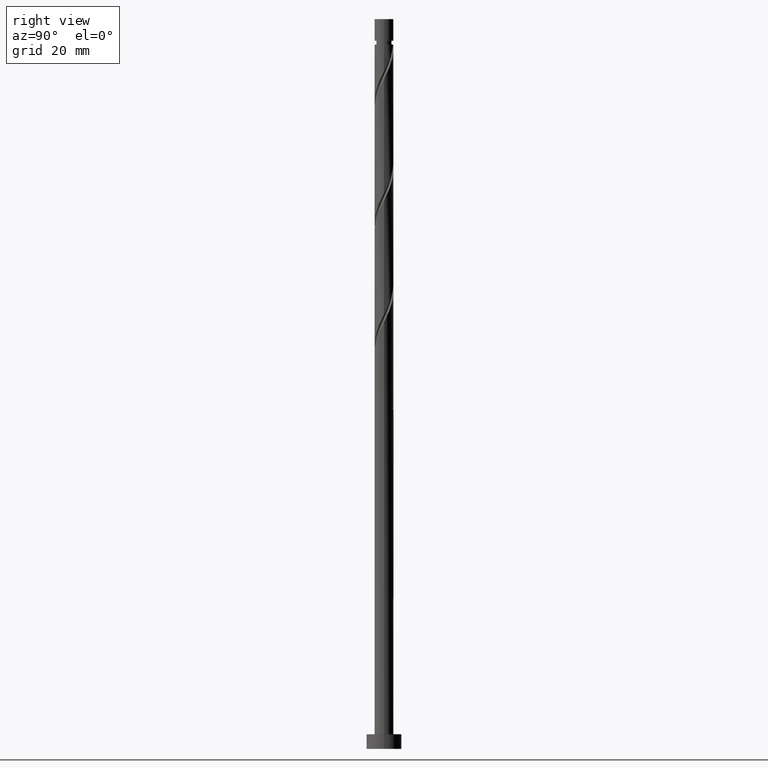
[diagram: clean part render]
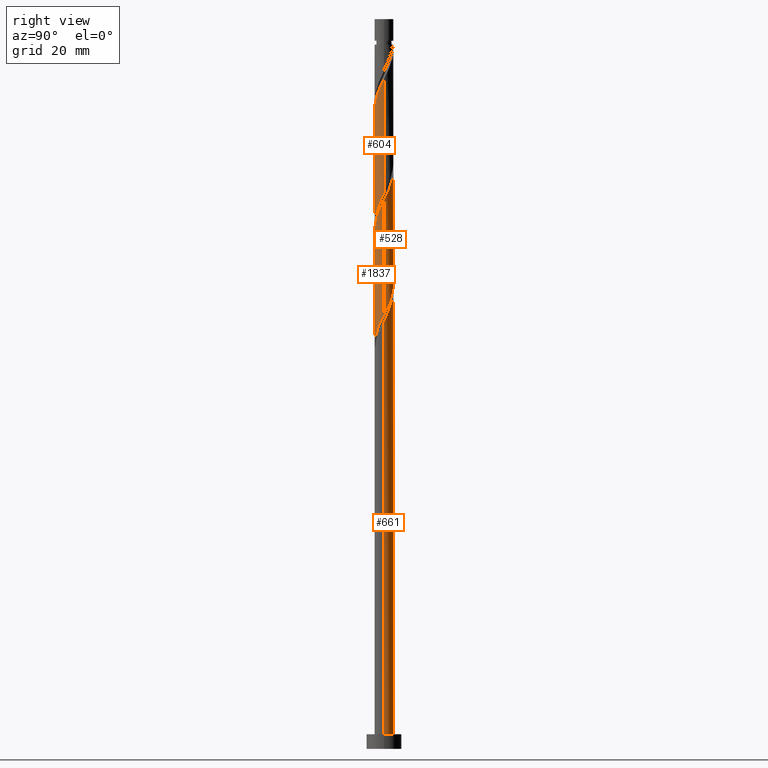
[diagram: same view with one multi-face feature highlighted, each face labeled with its STEP entity id]
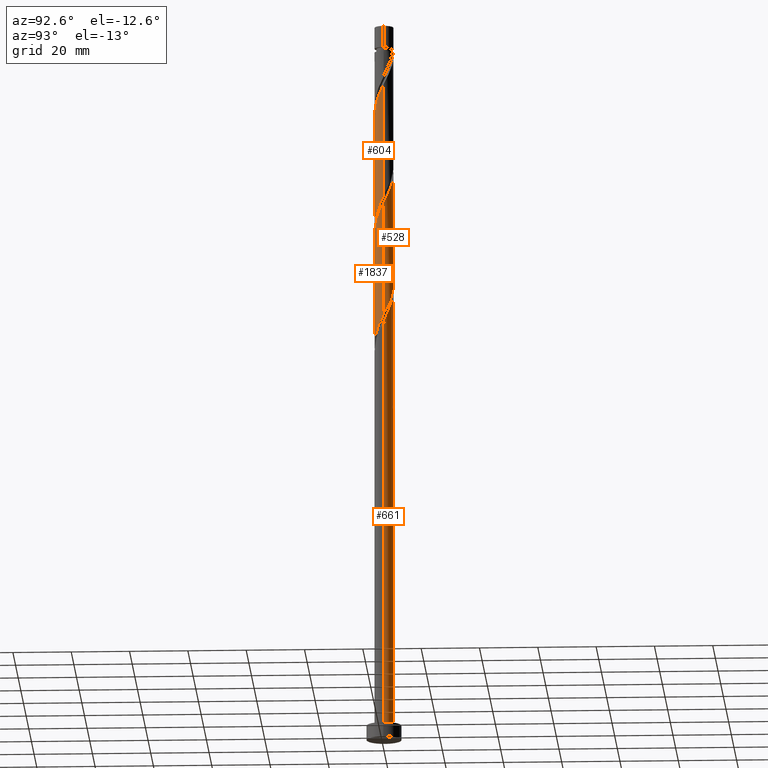
[diagram: same view with one multi-face feature highlighted, each face labeled with its STEP entity id]
A machine part, right view. The highlighted faces form ONE feature: a constant-radius fillet chain: 4 tangent blend faces with common blend radius 3.25 mm. The faces share edges in the B-rep.
A second angle (auxiliary view) of the same feature is appended — it is thin or edge-on in the first view.
Their STEP definitions:
[1] entity #604 (Cylinder):
#2 = CARTESIAN_POINT ( 'NONE',  ( -3.249999999999998668, -0.2640834252454046238, 170.2207945866532839 ) ) ;
#8 = CARTESIAN_POINT ( 'NONE',  ( -3.250000000000004885, -3.813764325988071043E-15, 208.6919167641879369 ) ) ;
#70 = CARTESIAN_POINT ( 'NONE',  ( 2.358742199564652697, -2.270365900294404771, 224.4429155631566459 ) ) ;
#78 = CARTESIAN_POINT ( 'NONE',  ( 3.250000000000004885, -1.166563205596351020E-15, 229.5252500975211660 ) ) ;
#94 = ORIENTED_EDGE ( 'NONE', *, *, #689, .T. ) ;
#120 = CARTESIAN_POINT ( 'NONE',  ( 3.250000000000004441, -1.166563205596351020E-15, 229.5252500975211660 ) ) ;
#198 = ORIENTED_EDGE ( 'NONE', *, *, #1499, .F. ) ;
#205 = CARTESIAN_POINT ( 'NONE',  ( 3.250000000000000444, 4.068015281053975210E-15, 190.5144271826383147 ) ) ;
#216 = CARTESIAN_POINT ( 'NONE',  ( 2.052804757022352433, -2.519621525060149914, 223.6416335118745167 ) ) ;
#259 = CYLINDRICAL_SURFACE ( 'NONE', #476, 3.250000000000000444 ) ;
#282 = CARTESIAN_POINT ( 'NONE',  ( -2.358742199564649145, -2.270365900294399886, 174.7634283836694920 ) ) ;
#300 = CARTESIAN_POINT ( 'NONE',  ( -3.250000000000000444, -5.458917564649635721E-15, 169.6810938493049719 ) ) ;
#306 = EDGE_LOOP ( 'NONE', ( #795, #916, #94, #198 ) ) ;
#311 = CARTESIAN_POINT ( 'NONE',  ( -2.538127330985535224, -2.067881944631018598, 213.2249668452079447 ) ) ;
#331 = LINE ( 'NONE', #903, #1171 ) ;
#345 = CARTESIAN_POINT ( 'NONE',  ( 1.286407482375274247, -3.010545112519590116, 182.7762488964900456 ) ) ;
#363 = CARTESIAN_POINT ( 'NONE',  ( 3.250000000000001332, -0.1292626735944874539, 190.2502562670053976 ) ) ;
#444 = CARTESIAN_POINT ( 'NONE',  ( 3.239733877669281448, -0.2581170313674841510, 189.9877873580284131 ) ) ;
#451 = EDGE_CURVE ( 'NONE', #658, #1624, #331, .T. ) ;
#453 = CARTESIAN_POINT ( 'NONE',  ( -3.239733877669285889, -0.2581170313674810979, 209.2185565887976679 ) ) ;
#476 = AXIS2_PLACEMENT_3D ( 'NONE', #1829, #1414, #1377 ) ;
#488 = CARTESIAN_POINT ( 'NONE',  ( 1.627952452366740133, -2.812875897161678296, 183.5775309477720043 ) ) ;
#508 = CARTESIAN_POINT ( 'NONE',  ( 1.746867314480051947, -2.768877149825894612, 222.8403514605925011 ) ) ;
#572 = CARTESIAN_POINT ( 'NONE',  ( -3.250000000000000444, -5.458917564649635721E-15, 169.6810938493049719 ) ) ;
#577 = CARTESIAN_POINT ( 'NONE',  ( -3.250000000000003997, -0.1292626735945026362, 208.9560876798208255 ) ) ;
#582 = CARTESIAN_POINT ( 'NONE',  ( -2.052804757022349325, -2.519621525060144585, 175.5647104349515359 ) ) ;
#587 = CARTESIAN_POINT ( 'NONE',  ( -2.959250504853449648, -1.400379425281350398, 211.6224027426438283 ) ) ;
#604 = ADVANCED_FACE ( 'NONE', ( #1819 ), #259, .T. ) ;
#651 = CARTESIAN_POINT ( 'NONE',  ( -1.286407482375277800, -3.010545112519593669, 216.4300950503361207 ) ) ;
#658 = VERTEX_POINT ( 'NONE', #120 ) ;
#665 = CARTESIAN_POINT ( 'NONE',  ( 1.033470850682205233, -3.106471323868436052, 221.2377873580283847 ) ) ;
#689 = EDGE_CURVE ( 'NONE', #1332, #1000, #713, .T. ) ;
#694 = CARTESIAN_POINT ( 'NONE',  ( -0.2600128175564059285, -3.263528676131567163, 179.5711206913617559 ) ) ;
#703 = CARTESIAN_POINT ( 'NONE',  ( -1.390169082581128368, -2.937674236847159559, 177.1672745375156239 ) ) ;
#713 = LINE ( 'NONE', #971, #1374 ) ;
#714 = CARTESIAN_POINT ( 'NONE',  ( -3.143654136451845105, -0.9141470098380720666, 171.5583001785413160 ) ) ;
#741 = CARTESIAN_POINT ( 'NONE',  ( -1.627952452366745240, -2.812875897161680516, 215.6288129990541336 ) ) ;
#770 = CARTESIAN_POINT ( 'NONE',  ( 1.390169082581128368, -2.937674236847165776, 222.0390694093105139 ) ) ;
#776 = CARTESIAN_POINT ( 'NONE',  ( 0.5285562154176340899, -3.230921604182013240, 181.1736847939259007 ) ) ;
#780 = CARTESIAN_POINT ( 'NONE',  ( -0.9074818488964577767, -3.120733358350805897, 217.2313771016181647 ) ) ;
#793 = CARTESIAN_POINT ( 'NONE',  ( 3.250000000000000444, 4.068015281053975210E-15, 190.5144271826382862 ) ) ;
#795 = ORIENTED_EDGE ( 'NONE', *, *, #451, .F. ) ;
#865 = CARTESIAN_POINT ( 'NONE',  ( -3.083821650335326847, -1.025935684593890285, 210.8211206913617843 ) ) ;
#873 = CARTESIAN_POINT ( 'NONE',  ( -2.253812376671872730, -2.341544313217394535, 214.0262488964899887 ) ) ;
#903 = CARTESIAN_POINT ( 'NONE',  ( 3.250000000000000444, 3.980102097228898231E-16, 250.0000000000000000 ) ) ;
#906 = CARTESIAN_POINT ( 'NONE',  ( 3.083821650335320630, -1.025935684593891173, 188.3852232554643251 ) ) ;
#916 = ORIENTED_EDGE ( 'NONE', *, *, #1047, .F. ) ;
#919 = CARTESIAN_POINT ( 'NONE',  ( 2.988594849070724813, -1.277028123460074438, 226.8467617170027779 ) ) ;
#971 = CARTESIAN_POINT ( 'NONE',  ( -3.250000000000000444, 0.000000000000000000, 250.0000000000000000 ) ) ;
#981 = CARTESIAN_POINT ( 'NONE',  ( -1.033470850682206121, -3.106471323868430723, 177.9685565887976963 ) ) ;
#1000 = VERTEX_POINT ( 'NONE', #300 ) ;
#1015 = CARTESIAN_POINT ( 'NONE',  ( 2.253812376671868289, -2.341544313217390094, 185.1800950503361776 ) ) ;
#1029 =( BOUNDED_CURVE ( )  B_SPLINE_CURVE ( 2, ( #8, #577, #453, #1556, #865, #587, #1565, #311, #873, #1430, #741, #651, #780, #1213, #1475, #1790, #1051, #665, #770, #508, #216, #70, #1608, #1620, #919, #1627, #1338, #1779, #78 ),
 .UNSPECIFIED., .F., .T. ) 
 B_SPLINE_CURVE_WITH_KNOTS ( ( 3, 2, 2, 2, 2, 2, 2, 2, 2, 2, 2, 2, 2, 2, 3 ),
 ( 0.5545271625973834384, 0.5576923076923077094, 0.5673076923076922906, 0.5769230769230768718, 0.5865384615384615641, 0.5961538461538461453, 0.6057692307692308376, 0.6153846153846154188, 0.6250000000000000000, 0.6346153846153845812, 0.6442307692307691624, 0.6538461538461538547, 0.6634615384615384359, 0.6730769230769231282, 0.6795271625973831053 ),
 .UNSPECIFIED. ) 
 CURVE ( )  GEOMETRIC_REPRESENTATION_ITEM ( )  RATIONAL_B_SPLINE_CURVE ( ( 0.9061636035682909540, 0.9069090390690797143, 0.9090909090909361501, 0.9024626128164395800, 0.9090909090909361501, 0.9024626128164395800, 0.9090909090909361501, 0.9024626128164395800, 0.9090909090909361501, 0.9024626128164395800, 0.9090909090909361501, 0.9024626128164395800, 0.9090909090909361501, 0.9024626128164395800, 0.9090909090909361501, 0.9024626128164395800, 0.9090909090909361501, 0.9024626128164395800, 0.9090909090909361501, 0.9024626128164395800, 0.9090909090909361501, 0.9024626128164395800, 0.9090909090909361501, 0.9024626128164395800, 0.9090909090909361501, 0.9024626128164395800, 0.9090909090909361501, 0.9046444828382962378, 0.9061636035682908430 ) ) 
 REPRESENTATION_ITEM ( '' )  );
#1047 = EDGE_CURVE ( 'NONE', #1332, #658, #1029, .T. ) ;
#1051 = CARTESIAN_POINT ( 'NONE',  ( 0.6467418341193050813, -3.185000000000004050, 220.4365053067463691 ) ) ;
#1129 = DIRECTION ( 'NONE',  ( -0.000000000000000000, -0.000000000000000000, -1.000000000000000000 ) ) ;
#1144 = CARTESIAN_POINT ( 'NONE',  ( 2.959250504853443875, -1.400379425281348400, 187.5839412041822527 ) ) ;
#1171 = VECTOR ( 'NONE', #1309, 1000.000000000000000 ) ;
#1213 = CARTESIAN_POINT ( 'NONE',  ( -0.5285562154176376426, -3.230921604182017681, 218.0326591529002371 ) ) ;
#1268 = CARTESIAN_POINT ( 'NONE',  ( -3.207364547986603753, -0.5247024455047688551, 170.7570181272592436 ) ) ;
#1277 = CARTESIAN_POINT ( 'NONE',  ( -2.988594849070721704, -1.277028123460070885, 172.3595822298233031 ) ) ;
#1281 = CARTESIAN_POINT ( 'NONE',  ( 3.208392795817198717, -0.6514919439064307261, 189.1865053067463975 ) ) ;
#1309 = DIRECTION ( 'NONE',  ( -0.000000000000000000, -0.000000000000000000, -1.000000000000000000 ) ) ;
#1323 = CARTESIAN_POINT ( 'NONE',  ( 0.1342716989306140807, -3.247225140156789536, 180.3724027426438283 ) ) ;
#1332 = VERTEX_POINT ( 'NONE', #1436 ) ;
#1338 = CARTESIAN_POINT ( 'NONE',  ( 3.207364547986609082, -0.5247024455047716307, 228.4493258195668943 ) ) ;
#1374 = VECTOR ( 'NONE', #1129, 1000.000000000000000 ) ;
#1377 = DIRECTION ( 'NONE',  ( -1.000000000000000000, 0.000000000000000000, 0.000000000000000000 ) ) ;
#1403 = CARTESIAN_POINT ( 'NONE',  ( -2.833535561689598303, -1.639909237082070037, 173.1608642811054040 ) ) ;
#1414 = DIRECTION ( 'NONE',  ( -0.000000000000000000, -0.000000000000000000, -1.000000000000000000 ) ) ;
#1416 = CARTESIAN_POINT ( 'NONE',  ( -2.596138880627123946, -1.955137568688234628, 173.9621463323874195 ) ) ;
#1430 = CARTESIAN_POINT ( 'NONE',  ( -1.969497422358212013, -2.615206681803768252, 214.8275309477720327 ) ) ;
#1436 = CARTESIAN_POINT ( 'NONE',  ( -3.250000000000004885, -3.813764325988071043E-15, 208.6919167641879085 ) ) ;
#1457 = CARTESIAN_POINT ( 'NONE',  ( 2.538127330985529007, -2.067881944631017266, 185.9813771016181931 ) ) ;
#1464 = CARTESIAN_POINT ( 'NONE',  ( 0.9074818488964547791, -3.120733358350800568, 181.9749668452079732 ) ) ;
#1475 = CARTESIAN_POINT ( 'NONE',  ( -0.1342716989306171060, -3.247225140156795309, 218.8339412041823095 ) ) ;
#1499 = EDGE_CURVE ( 'NONE', #1624, #1000, #1787, .T. ) ;
#1554 = CARTESIAN_POINT ( 'NONE',  ( 2.748688917919486663, -1.734130684956182833, 186.7826591529002656 ) ) ;
#1556 = CARTESIAN_POINT ( 'NONE',  ( -3.208392795817203602, -0.6514919439064305040, 210.0198386400797119 ) ) ;
#1564 = CARTESIAN_POINT ( 'NONE',  ( 1.969497422358206684, -2.615206681803766031, 184.3788129990541620 ) ) ;
#1565 = CARTESIAN_POINT ( 'NONE',  ( -2.748688917919491992, -1.734130684956183721, 212.4236847939259007 ) ) ;
#1608 = CARTESIAN_POINT ( 'NONE',  ( 2.596138880627126166, -1.955137568688240179, 225.2441976144387183 ) ) ;
#1620 = CARTESIAN_POINT ( 'NONE',  ( 2.833535561689600968, -1.639909237082075588, 226.0454796657207908 ) ) ;
#1624 = VERTEX_POINT ( 'NONE', #205 ) ;
#1627 = CARTESIAN_POINT ( 'NONE',  ( 3.143654136451849102, -0.9141470098380762854, 227.6480437682848503 ) ) ;
#1713 = CARTESIAN_POINT ( 'NONE',  ( -0.6467418341193054143, -3.184999999999998721, 178.7698386400797688 ) ) ;
#1779 = CARTESIAN_POINT ( 'NONE',  ( 3.250000000000003553, -0.2640834252454062336, 228.9855493601728540 ) ) ;
#1787 =( BOUNDED_CURVE ( )  B_SPLINE_CURVE ( 2, ( #793, #363, #444, #1281, #906, #1144, #1554, #1457, #1015, #1564, #488, #345, #1464, #776, #1323, #694, #1713, #981, #703, #1831, #582, #282, #1416, #1403, #1277, #714, #1268, #2, #572 ),
 .UNSPECIFIED., .F., .T. ) 
 B_SPLINE_CURVE_WITH_KNOTS ( ( 3, 2, 2, 2, 2, 2, 2, 2, 2, 2, 2, 2, 2, 2, 3 ),
 ( 0.5545271625973829943, 0.5576923076923077094, 0.5673076923076922906, 0.5769230769230768718, 0.5865384615384615641, 0.5961538461538461453, 0.6057692307692307265, 0.6153846153846154188, 0.6250000000000000000, 0.6346153846153845812, 0.6442307692307692735, 0.6538461538461538547, 0.6634615384615384359, 0.6730769230769231282, 0.6795271625973831053 ),
 .UNSPECIFIED. ) 
 CURVE ( )  GEOMETRIC_REPRESENTATION_ITEM ( )  RATIONAL_B_SPLINE_CURVE ( ( 0.9061636035682838486, 0.9069090390690723869, 0.9090909090909291557, 0.9024626128164325856, 0.9090909090909291557, 0.9024626128164325856, 0.9090909090909291557, 0.9024626128164325856, 0.9090909090909291557, 0.9024626128164325856, 0.9090909090909291557, 0.9024626128164325856, 0.9090909090909291557, 0.9024626128164325856, 0.9090909090909291557, 0.9024626128164325856, 0.9090909090909291557, 0.9024626128164325856, 0.9090909090909291557, 0.9024626128164325856, 0.9090909090909291557, 0.9024626128164325856, 0.9090909090909291557, 0.9024626128164325856, 0.9090909090909291557, 0.9024626128164325856, 0.9090909090909291557, 0.9046444828382893544, 0.9061636035682838486 ) ) 
 REPRESENTATION_ITEM ( '' )  );
#1790 = CARTESIAN_POINT ( 'NONE',  ( 0.2600128175564035971, -3.263528676131572936, 219.6352232554642967 ) ) ;
#1819 = FACE_OUTER_BOUND ( 'NONE', #306, .T. ) ;
#1829 = CARTESIAN_POINT ( 'NONE',  ( 0.000000000000000000, 0.000000000000000000, 250.0000000000000000 ) ) ;
#1831 = CARTESIAN_POINT ( 'NONE',  ( -1.746867314480051281, -2.768877149825889727, 176.3659924862335799 ) ) ;
[2] entity #528 (Cylinder):
#52 = CARTESIAN_POINT ( 'NONE',  ( 0.1342716989306189102, 3.247225140156795309, 198.0006078708489667 ) ) ;
#63 = CARTESIAN_POINT ( 'NONE',  ( -0.2600128175564032640, 3.263528676131572936, 198.8018899221310392 ) ) ;
#92 = DIRECTION ( 'NONE',  ( -1.000000000000000000, 0.000000000000000000, 0.000000000000000000 ) ) ;
#109 = CARTESIAN_POINT ( 'NONE',  ( -3.250000000000005773, 0.2640834252453927444, 208.1522160268396249 ) ) ;
#160 = EDGE_LOOP ( 'NONE', ( #992, #1587, #433, #1312 ) ) ;
#177 = CARTESIAN_POINT ( 'NONE',  ( 1.286407482375278022, 3.010545112519593669, 195.5967617170027779 ) ) ;
#229 = CARTESIAN_POINT ( 'NONE',  ( 0.000000000000000000, 0.000000000000000000, 250.0000000000000000 ) ) ;
#241 = CARTESIAN_POINT ( 'NONE',  ( 3.207364547986603753, 0.5247024455047691882, 149.9236847939258155 ) ) ;
#250 = CARTESIAN_POINT ( 'NONE',  ( 0.2600128175564052069, 3.263528676131567607, 158.7377873580284415 ) ) ;
#286 =( BOUNDED_CURVE ( )  B_SPLINE_CURVE ( 2, ( #686, #561, #1816, #1798, #536, #553, #1111, #410, #1252, #1527, #833, #1388, #1224, #531, #352, #250, #1063, #819, #679, #379, #945, #1480, #1762, #1783, #784, #1198, #241, #1237, #1807 ),
 .UNSPECIFIED., .F., .T. ) 
 B_SPLINE_CURVE_WITH_KNOTS ( ( 3, 2, 2, 2, 2, 2, 2, 2, 2, 2, 2, 2, 2, 2, 3 ),
 ( 0.6795271625973831053, 0.6826923076923077094, 0.6923076923076922906, 0.7019230769230768718, 0.7115384615384615641, 0.7211538461538461453, 0.7307692307692307265, 0.7403846153846154188, 0.7500000000000000000, 0.7596153846153845812, 0.7692307692307692735, 0.7788461538461538547, 0.7884615384615384359, 0.7980769230769231282, 0.8045271625973832164 ),
 .UNSPECIFIED. ) 
 CURVE ( )  GEOMETRIC_REPRESENTATION_ITEM ( )  RATIONAL_B_SPLINE_CURVE ( ( 0.9061636035682838486, 0.9069090390690723869, 0.9090909090909291557, 0.9024626128164325856, 0.9090909090909291557, 0.9024626128164325856, 0.9090909090909291557, 0.9024626128164325856, 0.9090909090909291557, 0.9024626128164325856, 0.9090909090909291557, 0.9024626128164325856, 0.9090909090909291557, 0.9024626128164325856, 0.9090909090909291557, 0.9024626128164325856, 0.9090909090909291557, 0.9024626128164325856, 0.9090909090909291557, 0.9024626128164325856, 0.9090909090909291557, 0.9024626128164325856, 0.9090909090909291557, 0.9024626128164325856, 0.9090909090909291557, 0.9024626128164325856, 0.9090909090909291557, 0.9046444828382892434, 0.9061636035682840706 ) ) 
 REPRESENTATION_ITEM ( '' )  );
#300 = CARTESIAN_POINT ( 'NONE',  ( -3.250000000000000444, -5.458917564649635721E-15, 169.6810938493049719 ) ) ;
#321 = CARTESIAN_POINT ( 'NONE',  ( 1.969497422358212901, 2.615206681803766919, 193.9941976144387183 ) ) ;
#351 = AXIS2_PLACEMENT_3D ( 'NONE', #229, #1353, #92 ) ;
#352 = CARTESIAN_POINT ( 'NONE',  ( -0.1342716989306150244, 3.247225140156789536, 159.5390694093104855 ) ) ;
#379 = CARTESIAN_POINT ( 'NONE',  ( 1.746867314480051947, 2.768877149825889727, 155.5326591529002087 ) ) ;
#383 = CARTESIAN_POINT ( 'NONE',  ( 2.959250504853450092, 1.400379425281349066, 190.7890694093105139 ) ) ;
#393 = CARTESIAN_POINT ( 'NONE',  ( -2.596138880627126611, 1.955137568688239735, 204.4108642811053471 ) ) ;
#410 = CARTESIAN_POINT ( 'NONE',  ( -2.538127330985530339, 2.067881944631015489, 165.1480437682849072 ) ) ;
#422 = VERTEX_POINT ( 'NONE', #525 ) ;
#426 = CARTESIAN_POINT ( 'NONE',  ( -3.143654136451849990, 0.9141470098380741760, 206.8147104349515075 ) ) ;
#433 = ORIENTED_EDGE ( 'NONE', *, *, #472, .F. ) ;
#459 = EDGE_CURVE ( 'NONE', #1445, #1332, #673, .T. ) ;
#465 = CARTESIAN_POINT ( 'NONE',  ( 3.250000000000005773, 0.1292626735944929217, 188.1227543464874827 ) ) ;
#472 = EDGE_CURVE ( 'NONE', #1000, #422, #286, .T. ) ;
#475 = CARTESIAN_POINT ( 'NONE',  ( 2.748688917919491548, 1.734130684956184165, 191.5903514605925579 ) ) ;
#525 = CARTESIAN_POINT ( 'NONE',  ( 3.250000000000000444, 4.068015281053975210E-15, 148.8477605159716575 ) ) ;
#528 = ADVANCED_FACE ( 'NONE', ( #1488 ), #1643, .T. ) ;
#531 = CARTESIAN_POINT ( 'NONE',  ( -0.5285562154176352001, 3.230921604182013240, 160.3403514605925011 ) ) ;
#536 = CARTESIAN_POINT ( 'NONE',  ( -3.083821650335321074, 1.025935684593889841, 167.5518899221310392 ) ) ;
#553 = CARTESIAN_POINT ( 'NONE',  ( -2.959250504853443875, 1.400379425281348844, 166.7506078708489952 ) ) ;
#561 = CARTESIAN_POINT ( 'NONE',  ( -3.250000000000001332, 0.1292626735944902294, 169.4169229336720264 ) ) ;
#586 = VECTOR ( 'NONE', #990, 1000.000000000000000 ) ;
#626 = CARTESIAN_POINT ( 'NONE',  ( -0.6467418341193047482, 3.185000000000004050, 199.6031719734130547 ) ) ;
#673 =( BOUNDED_CURVE ( )  B_SPLINE_CURVE ( 2, ( #1083, #465, #772, #1574, #1635, #383, #475, #755, #813, #321, #884, #177, #1300, #1033, #52, #63, #626, #1185, #1626, #939, #828, #1244, #393, #1371, #1664, #426, #1823, #109, #1094 ),
 .UNSPECIFIED., .F., .T. ) 
 B_SPLINE_CURVE_WITH_KNOTS ( ( 3, 2, 2, 2, 2, 2, 2, 2, 2, 2, 2, 2, 2, 2, 3 ),
 ( 0.4295271625973832164, 0.4326923076923077094, 0.4423076923076922906, 0.4519230769230768718, 0.4615384615384615641, 0.4711538461538461453, 0.4807692307692307265, 0.4903846153846154188, 0.5000000000000000000, 0.5096153846153845812, 0.5192307692307691624, 0.5288461538461538547, 0.5384615384615384359, 0.5480769230769231282, 0.5545271625973834384 ),
 .UNSPECIFIED. ) 
 CURVE ( )  GEOMETRIC_REPRESENTATION_ITEM ( )  RATIONAL_B_SPLINE_CURVE ( ( 0.9061636035682908430, 0.9069090390690794923, 0.9090909090909361501, 0.9024626128164395800, 0.9090909090909361501, 0.9024626128164395800, 0.9090909090909361501, 0.9024626128164395800, 0.9090909090909361501, 0.9024626128164395800, 0.9090909090909361501, 0.9024626128164395800, 0.9090909090909361501, 0.9024626128164395800, 0.9090909090909361501, 0.9024626128164395800, 0.9090909090909361501, 0.9024626128164395800, 0.9090909090909361501, 0.9024626128164395800, 0.9090909090909361501, 0.9024626128164395800, 0.9090909090909361501, 0.9024626128164395800, 0.9090909090909361501, 0.9024626128164395800, 0.9090909090909361501, 0.9046444828382961267, 0.9061636035682909540 ) ) 
 REPRESENTATION_ITEM ( '' )  );
#679 = CARTESIAN_POINT ( 'NONE',  ( 1.390169082581129922, 2.937674236847158671, 156.3339412041822811 ) ) ;
#686 = CARTESIAN_POINT ( 'NONE',  ( -3.250000000000000444, -5.458917564649635721E-15, 169.6810938493049719 ) ) ;
#689 = EDGE_CURVE ( 'NONE', #1332, #1000, #713, .T. ) ;
#713 = LINE ( 'NONE', #971, #1374 ) ;
#726 = CARTESIAN_POINT ( 'NONE',  ( 3.250000000000000444, 3.980102097228898231E-16, 250.0000000000000000 ) ) ;
#755 = CARTESIAN_POINT ( 'NONE',  ( 2.538127330985536556, 2.067881944631017266, 192.3916335118746304 ) ) ;
#772 = CARTESIAN_POINT ( 'NONE',  ( 3.239733877669286333, 0.2581170313674799321, 188.3852232554642967 ) ) ;
#784 = CARTESIAN_POINT ( 'NONE',  ( 2.988594849070721704, 1.277028123460070663, 151.5262488964900456 ) ) ;
#803 = EDGE_CURVE ( 'NONE', #1445, #422, #1681, .T. ) ;
#813 = CARTESIAN_POINT ( 'NONE',  ( 2.253812376671873174, 2.341544313217394535, 193.1929155631566175 ) ) ;
#819 = CARTESIAN_POINT ( 'NONE',  ( 1.033470850682206565, 3.106471323868430723, 157.1352232554643535 ) ) ;
#828 = CARTESIAN_POINT ( 'NONE',  ( -2.052804757022352877, 2.519621525060149914, 202.8083001785412591 ) ) ;
#833 = CARTESIAN_POINT ( 'NONE',  ( -1.627952452366741021, 2.812875897161677852, 162.7441976144386899 ) ) ;
#884 = CARTESIAN_POINT ( 'NONE',  ( 1.627952452366745906, 2.812875897161680516, 194.7954796657207623 ) ) ;
#939 = CARTESIAN_POINT ( 'NONE',  ( -1.746867314480052613, 2.768877149825894612, 202.0070181272592151 ) ) ;
#945 = CARTESIAN_POINT ( 'NONE',  ( 2.052804757022351545, 2.519621525060142808, 154.7313771016182500 ) ) ;
#971 = CARTESIAN_POINT ( 'NONE',  ( -3.250000000000000444, 0.000000000000000000, 250.0000000000000000 ) ) ;
#990 = DIRECTION ( 'NONE',  ( -0.000000000000000000, -0.000000000000000000, -1.000000000000000000 ) ) ;
#992 = ORIENTED_EDGE ( 'NONE', *, *, #459, .F. ) ;
#1000 = VERTEX_POINT ( 'NONE', #300 ) ;
#1033 = CARTESIAN_POINT ( 'NONE',  ( 0.5285562154176379757, 3.230921604182017681, 197.1993258195668659 ) ) ;
#1063 = CARTESIAN_POINT ( 'NONE',  ( 0.6467418341193055253, 3.184999999999998721, 157.9365053067463691 ) ) ;
#1083 = CARTESIAN_POINT ( 'NONE',  ( 3.250000000000004885, 1.869492316660819541E-15, 187.8585834308544804 ) ) ;
#1094 = CARTESIAN_POINT ( 'NONE',  ( -3.250000000000004885, -3.813764325988071043E-15, 208.6919167641879369 ) ) ;
#1111 = CARTESIAN_POINT ( 'NONE',  ( -2.748688917919486663, 1.734130684956182167, 165.9493258195669512 ) ) ;
#1129 = DIRECTION ( 'NONE',  ( -0.000000000000000000, -0.000000000000000000, -1.000000000000000000 ) ) ;
#1185 = CARTESIAN_POINT ( 'NONE',  ( -1.033470850682205677, 3.106471323868436052, 200.4044540246950987 ) ) ;
#1198 = CARTESIAN_POINT ( 'NONE',  ( 3.143654136451845105, 0.9141470098380702902, 150.7249668452079447 ) ) ;
#1224 = CARTESIAN_POINT ( 'NONE',  ( -0.9074818488964551122, 3.120733358350800568, 161.1416335118746019 ) ) ;
#1237 = CARTESIAN_POINT ( 'NONE',  ( 3.249999999999999556, 0.2640834252453994613, 149.3874612533199695 ) ) ;
#1244 = CARTESIAN_POINT ( 'NONE',  ( -2.358742199564652697, 2.270365900294404771, 203.6095822298232747 ) ) ;
#1252 = CARTESIAN_POINT ( 'NONE',  ( -2.253812376671868289, 2.341544313217390094, 164.3467617170028348 ) ) ;
#1300 = CARTESIAN_POINT ( 'NONE',  ( 0.9074818488964597751, 3.120733358350805453, 196.3980437682848503 ) ) ;
#1312 = ORIENTED_EDGE ( 'NONE', *, *, #689, .F. ) ;
#1332 = VERTEX_POINT ( 'NONE', #1436 ) ;
#1353 = DIRECTION ( 'NONE',  ( -0.000000000000000000, -0.000000000000000000, -1.000000000000000000 ) ) ;
#1371 = CARTESIAN_POINT ( 'NONE',  ( -2.833535561689601412, 1.639909237082074478, 205.2121463323873627 ) ) ;
#1374 = VECTOR ( 'NONE', #1129, 1000.000000000000000 ) ;
#1388 = CARTESIAN_POINT ( 'NONE',  ( -1.286407482375274913, 3.010545112519589672, 161.9429155631566459 ) ) ;
#1436 = CARTESIAN_POINT ( 'NONE',  ( -3.250000000000004885, -3.813764325988071043E-15, 208.6919167641879085 ) ) ;
#1445 = VERTEX_POINT ( 'NONE', #1825 ) ;
#1480 = CARTESIAN_POINT ( 'NONE',  ( 2.358742199564649145, 2.270365900294399886, 153.9300950503362060 ) ) ;
#1488 = FACE_OUTER_BOUND ( 'NONE', #160, .T. ) ;
#1527 = CARTESIAN_POINT ( 'NONE',  ( -1.969497422358206684, 2.615206681803766031, 163.5454796657207908 ) ) ;
#1574 = CARTESIAN_POINT ( 'NONE',  ( 3.208392795817203602, 0.6514919439064300599, 189.1865053067463975 ) ) ;
#1587 = ORIENTED_EDGE ( 'NONE', *, *, #803, .T. ) ;
#1626 = CARTESIAN_POINT ( 'NONE',  ( -1.390169082581129034, 2.937674236847164888, 201.2057360759771711 ) ) ;
#1635 = CARTESIAN_POINT ( 'NONE',  ( 3.083821650335326847, 1.025935684593888286, 189.9877873580284700 ) ) ;
#1643 = CYLINDRICAL_SURFACE ( 'NONE', #351, 3.250000000000000444 ) ;
#1664 = CARTESIAN_POINT ( 'NONE',  ( -2.988594849070724813, 1.277028123460074438, 206.0134283836694351 ) ) ;
#1681 = LINE ( 'NONE', #726, #586 ) ;
#1762 = CARTESIAN_POINT ( 'NONE',  ( 2.596138880627123946, 1.955137568688233740, 153.1288129990540767 ) ) ;
#1783 = CARTESIAN_POINT ( 'NONE',  ( 2.833535561689598747, 1.639909237082068261, 152.3275309477720612 ) ) ;
#1798 = CARTESIAN_POINT ( 'NONE',  ( -3.208392795817198717, 0.6514919439064305040, 168.3531719734130832 ) ) ;
#1807 = CARTESIAN_POINT ( 'NONE',  ( 3.250000000000000444, 4.068015281053975210E-15, 148.8477605159716575 ) ) ;
#1816 = CARTESIAN_POINT ( 'NONE',  ( -3.239733877669281448, 0.2581170313674822081, 169.1544540246950987 ) ) ;
#1823 = CARTESIAN_POINT ( 'NONE',  ( -3.207364547986609082, 0.5247024455047712976, 207.6159924862335515 ) ) ;
#1825 = CARTESIAN_POINT ( 'NONE',  ( 3.250000000000004441, 1.869492316660819541E-15, 187.8585834308544804 ) ) ;
[3] entity #1837 (Cylinder):
#42 = CARTESIAN_POINT ( 'NONE',  ( 1.969497422358206684, -2.615206681803766031, 142.7121463323874480 ) ) ;
#88 = CYLINDRICAL_SURFACE ( 'NONE', #648, 3.250000000000000444 ) ;
#111 = CARTESIAN_POINT ( 'NONE',  ( 3.250000000000004885, 1.869492316660819541E-15, 187.8585834308544804 ) ) ;
#117 = CARTESIAN_POINT ( 'NONE',  ( 2.358742199564652697, -2.270365900294404771, 182.7762488964899603 ) ) ;
#159 = CARTESIAN_POINT ( 'NONE',  ( 1.286407482375274247, -3.010545112519590116, 141.1095822298233315 ) ) ;
#167 = CARTESIAN_POINT ( 'NONE',  ( 0.5285562154176340899, -3.230921604182013240, 139.5070181272592436 ) ) ;
#209 = VERTEX_POINT ( 'NONE', #1390 ) ;
#232 = EDGE_LOOP ( 'NONE', ( #1560, #1725, #1012, #1380 ) ) ;
#246 = CARTESIAN_POINT ( 'NONE',  ( 0.6467418341193050813, -3.185000000000004050, 178.7698386400797119 ) ) ;
#263 = CARTESIAN_POINT ( 'NONE',  ( -0.5285562154176376426, -3.230921604182017681, 176.3659924862336084 ) ) ;
#269 = CARTESIAN_POINT ( 'NONE',  ( -1.286407482375277800, -3.010545112519593669, 174.7634283836694635 ) ) ;
#292 = VECTOR ( 'NONE', #1836, 1000.000000000000000 ) ;
#315 = CARTESIAN_POINT ( 'NONE',  ( 3.250000000000000444, 4.068015281053975210E-15, 148.8477605159716575 ) ) ;
#324 = CARTESIAN_POINT ( 'NONE',  ( -3.143654136451845105, -0.9141470098380720666, 129.8916335118746019 ) ) ;
#341 = CARTESIAN_POINT ( 'NONE',  ( -0.6467418341193054143, -3.184999999999998721, 137.1031719734130832 ) ) ;
#360 = VERTEX_POINT ( 'NONE', #1009 ) ;
#376 = DIRECTION ( 'NONE',  ( -1.000000000000000000, 0.000000000000000000, 0.000000000000000000 ) ) ;
#386 = CARTESIAN_POINT ( 'NONE',  ( 3.143654136451849102, -0.9141470098380762854, 185.9813771016181647 ) ) ;
#395 = CARTESIAN_POINT ( 'NONE',  ( 3.250000000000004441, -0.2640834252454016817, 187.3188826935062252 ) ) ;
#422 = VERTEX_POINT ( 'NONE', #525 ) ;
#457 = CARTESIAN_POINT ( 'NONE',  ( 2.748688917919486663, -1.734130684956182833, 145.1159924862335799 ) ) ;
#466 = CARTESIAN_POINT ( 'NONE',  ( -2.833535561689598303, -1.639909237082070037, 131.4941976144387183 ) ) ;
#477 = CARTESIAN_POINT ( 'NONE',  ( -1.390169082581128368, -2.937674236847159559, 135.5006078708489667 ) ) ;
#487 = CARTESIAN_POINT ( 'NONE',  ( 2.959250504853443875, -1.400379425281348400, 145.9172745375156808 ) ) ;
#525 = CARTESIAN_POINT ( 'NONE',  ( 3.250000000000000444, 4.068015281053975210E-15, 148.8477605159716575 ) ) ;
#537 = CARTESIAN_POINT ( 'NONE',  ( -3.083821650335326847, -1.025935684593890285, 169.1544540246951556 ) ) ;
#569 = CARTESIAN_POINT ( 'NONE',  ( 1.033470850682205233, -3.106471323868436052, 179.5711206913617559 ) ) ;
#580 = CARTESIAN_POINT ( 'NONE',  ( 2.253812376671868289, -2.341544313217390094, 143.5134283836694635 ) ) ;
#586 = VECTOR ( 'NONE', #990, 1000.000000000000000 ) ;
#595 =( BOUNDED_CURVE ( )  B_SPLINE_CURVE ( 2, ( #315, #1045, #1712, #1310, #1558, #487, #457, #1595, #580, #42, #1164, #159, #1575, #167, #756, #746, #341, #1293, #477, #601, #1156, #1723, #1034, #466, #1024, #324, #886, #904, #1585 ),
 .UNSPECIFIED., .F., .T. ) 
 B_SPLINE_CURVE_WITH_KNOTS ( ( 3, 2, 2, 2, 2, 2, 2, 2, 2, 2, 2, 2, 2, 2, 3 ),
 ( 0.8045271625973832164, 0.8076923076923077094, 0.8173076923076922906, 0.8269230769230768718, 0.8365384615384615641, 0.8461538461538461453, 0.8557692307692307265, 0.8653846153846154188, 0.8750000000000000000, 0.8846153846153845812, 0.8942307692307692735, 0.9038461538461538547, 0.9134615384615384359, 0.9230769230769231282, 0.9295271625973833274 ),
 .UNSPECIFIED. ) 
 CURVE ( )  GEOMETRIC_REPRESENTATION_ITEM ( )  RATIONAL_B_SPLINE_CURVE ( ( 0.9061636035682840706, 0.9069090390690726089, 0.9090909090909291557, 0.9024626128164325856, 0.9090909090909291557, 0.9024626128164325856, 0.9090909090909291557, 0.9024626128164325856, 0.9090909090909291557, 0.9024626128164325856, 0.9090909090909291557, 0.9024626128164325856, 0.9090909090909291557, 0.9024626128164325856, 0.9090909090909291557, 0.9024626128164325856, 0.9090909090909291557, 0.9024626128164325856, 0.9090909090909291557, 0.9024626128164325856, 0.9090909090909291557, 0.9024626128164325856, 0.9090909090909291557, 0.9024626128164325856, 0.9090909090909291557, 0.9024626128164325856, 0.9090909090909291557, 0.9046444828382891323, 0.9061636035682839596 ) ) 
 REPRESENTATION_ITEM ( '' )  );
#601 = CARTESIAN_POINT ( 'NONE',  ( -1.746867314480051281, -2.768877149825889727, 134.6993258195669512 ) ) ;
#648 = AXIS2_PLACEMENT_3D ( 'NONE', #653, #1629, #376 ) ;
#653 = CARTESIAN_POINT ( 'NONE',  ( 0.000000000000000000, 0.000000000000000000, 250.0000000000000000 ) ) ;
#674 = CARTESIAN_POINT ( 'NONE',  ( 2.988594849070724813, -1.277028123460074438, 185.1800950503361491 ) ) ;
#711 = CARTESIAN_POINT ( 'NONE',  ( -3.250000000000000444, 0.000000000000000000, 250.0000000000000000 ) ) ;
#726 = CARTESIAN_POINT ( 'NONE',  ( 3.250000000000000444, 3.980102097228898231E-16, 250.0000000000000000 ) ) ;
#746 = CARTESIAN_POINT ( 'NONE',  ( -0.2600128175564059285, -3.263528676131567163, 137.9044540246951556 ) ) ;
#756 = CARTESIAN_POINT ( 'NONE',  ( 0.1342716989306140807, -3.247225140156789536, 138.7057360759771711 ) ) ;
#803 = EDGE_CURVE ( 'NONE', #1445, #422, #1681, .T. ) ;
#842 = CARTESIAN_POINT ( 'NONE',  ( -3.250000000000005773, -0.1292626735944936156, 167.2894210131541683 ) ) ;
#852 =( BOUNDED_CURVE ( )  B_SPLINE_CURVE ( 2, ( #1835, #842, #1364, #1504, #537, #1529, #969, #1512, #1657, #1811, #1397, #269, #960, #263, #951, #1240, #246, #569, #1229, #1382, #1636, #117, #1103, #1801, #674, #386, #1647, #395, #111 ),
 .UNSPECIFIED., .F., .T. ) 
 B_SPLINE_CURVE_WITH_KNOTS ( ( 3, 2, 2, 2, 2, 2, 2, 2, 2, 2, 2, 2, 2, 2, 3 ),
 ( 0.3045271625973832164, 0.3076923076923077094, 0.3173076923076922906, 0.3269230769230768718, 0.3365384615384615641, 0.3461538461538461453, 0.3557692307692307265, 0.3653846153846154188, 0.3750000000000000000, 0.3846153846153845812, 0.3942307692307692735, 0.4038461538461538547, 0.4134615384615384359, 0.4230769230769231282, 0.4295271625973832164 ),
 .UNSPECIFIED. ) 
 CURVE ( )  GEOMETRIC_REPRESENTATION_ITEM ( )  RATIONAL_B_SPLINE_CURVE ( ( 0.9061636035682908430, 0.9069090390690794923, 0.9090909090909361501, 0.9024626128164395800, 0.9090909090909361501, 0.9024626128164395800, 0.9090909090909361501, 0.9024626128164395800, 0.9090909090909361501, 0.9024626128164395800, 0.9090909090909361501, 0.9024626128164395800, 0.9090909090909361501, 0.9024626128164395800, 0.9090909090909361501, 0.9024626128164395800, 0.9090909090909361501, 0.9024626128164395800, 0.9090909090909361501, 0.9024626128164395800, 0.9090909090909361501, 0.9024626128164395800, 0.9090909090909361501, 0.9024626128164395800, 0.9090909090909361501, 0.9024626128164395800, 0.9090909090909361501, 0.9046444828382962378, 0.9061636035682908430 ) ) 
 REPRESENTATION_ITEM ( '' )  );
#872 = EDGE_CURVE ( 'NONE', #422, #360, #595, .T. ) ;
#886 = CARTESIAN_POINT ( 'NONE',  ( -3.207364547986603753, -0.5247024455047688551, 129.0903514605925579 ) ) ;
#904 = CARTESIAN_POINT ( 'NONE',  ( -3.250000000000000444, -0.2640834252453956865, 128.5541279199865983 ) ) ;
#951 = CARTESIAN_POINT ( 'NONE',  ( -0.1342716989306171060, -3.247225140156795309, 177.1672745375156239 ) ) ;
#960 = CARTESIAN_POINT ( 'NONE',  ( -0.9074818488964577767, -3.120733358350805897, 175.5647104349515075 ) ) ;
#969 = CARTESIAN_POINT ( 'NONE',  ( -2.748688917919491992, -1.734130684956183721, 170.7570181272592720 ) ) ;
#990 = DIRECTION ( 'NONE',  ( -0.000000000000000000, -0.000000000000000000, -1.000000000000000000 ) ) ;
#1009 = CARTESIAN_POINT ( 'NONE',  ( -3.249999999999999556, 3.589425247988801192E-15, 128.0144271826382862 ) ) ;
#1012 = ORIENTED_EDGE ( 'NONE', *, *, #1446, .T. ) ;
#1024 = CARTESIAN_POINT ( 'NONE',  ( -2.988594849070721704, -1.277028123460070885, 130.6929155631566459 ) ) ;
#1034 = CARTESIAN_POINT ( 'NONE',  ( -2.596138880627123946, -1.955137568688234628, 132.2954796657207623 ) ) ;
#1045 = CARTESIAN_POINT ( 'NONE',  ( 3.250000000000000000, -0.1292626735944964744, 148.5835896003386551 ) ) ;
#1103 = CARTESIAN_POINT ( 'NONE',  ( 2.596138880627126166, -1.955137568688240179, 183.5775309477720612 ) ) ;
#1156 = CARTESIAN_POINT ( 'NONE',  ( -2.052804757022349325, -2.519621525060144585, 133.8980437682848788 ) ) ;
#1164 = CARTESIAN_POINT ( 'NONE',  ( 1.627952452366740133, -2.812875897161678296, 141.9108642811053187 ) ) ;
#1199 = EDGE_CURVE ( 'NONE', #209, #1445, #852, .T. ) ;
#1229 = CARTESIAN_POINT ( 'NONE',  ( 1.390169082581128368, -2.937674236847165776, 180.3724027426438568 ) ) ;
#1240 = CARTESIAN_POINT ( 'NONE',  ( 0.2600128175564035971, -3.263528676131572936, 177.9685565887976395 ) ) ;
#1293 = CARTESIAN_POINT ( 'NONE',  ( -1.033470850682206121, -3.106471323868430723, 136.3018899221310676 ) ) ;
#1310 = CARTESIAN_POINT ( 'NONE',  ( 3.208392795817198717, -0.6514919439064307261, 147.5198386400797403 ) ) ;
#1348 = FACE_OUTER_BOUND ( 'NONE', #232, .T. ) ;
#1364 = CARTESIAN_POINT ( 'NONE',  ( -3.239733877669285889, -0.2581170313674810979, 167.5518899221310392 ) ) ;
#1380 = ORIENTED_EDGE ( 'NONE', *, *, #872, .F. ) ;
#1382 = CARTESIAN_POINT ( 'NONE',  ( 1.746867314480051947, -2.768877149825894612, 181.1736847939259007 ) ) ;
#1390 = CARTESIAN_POINT ( 'NONE',  ( -3.250000000000004441, 6.760084217045525025E-15, 167.0252500975211944 ) ) ;
#1397 = CARTESIAN_POINT ( 'NONE',  ( -1.627952452366745240, -2.812875897161680516, 173.9621463323874764 ) ) ;
#1445 = VERTEX_POINT ( 'NONE', #1825 ) ;
#1446 = EDGE_CURVE ( 'NONE', #209, #360, #1678, .T. ) ;
#1504 = CARTESIAN_POINT ( 'NONE',  ( -3.208392795817203602, -0.6514919439064305040, 168.3531719734130547 ) ) ;
#1512 = CARTESIAN_POINT ( 'NONE',  ( -2.538127330985535224, -2.067881944631018598, 171.5583001785412307 ) ) ;
#1529 = CARTESIAN_POINT ( 'NONE',  ( -2.959250504853449648, -1.400379425281350398, 169.9557360759771711 ) ) ;
#1558 = CARTESIAN_POINT ( 'NONE',  ( 3.083821650335320630, -1.025935684593891173, 146.7185565887976963 ) ) ;
#1560 = ORIENTED_EDGE ( 'NONE', *, *, #803, .F. ) ;
#1575 = CARTESIAN_POINT ( 'NONE',  ( 0.9074818488964547791, -3.120733358350800568, 140.3083001785412876 ) ) ;
#1585 = CARTESIAN_POINT ( 'NONE',  ( -3.249999999999999556, 3.589425247988801192E-15, 128.0144271826382862 ) ) ;
#1595 = CARTESIAN_POINT ( 'NONE',  ( 2.538127330985529007, -2.067881944631017266, 144.3147104349515359 ) ) ;
#1629 = DIRECTION ( 'NONE',  ( -0.000000000000000000, -0.000000000000000000, -1.000000000000000000 ) ) ;
#1636 = CARTESIAN_POINT ( 'NONE',  ( 2.052804757022352433, -2.519621525060149914, 181.9749668452079447 ) ) ;
#1647 = CARTESIAN_POINT ( 'NONE',  ( 3.207364547986609082, -0.5247024455047716307, 186.7826591529002656 ) ) ;
#1657 = CARTESIAN_POINT ( 'NONE',  ( -2.253812376671872730, -2.341544313217394535, 172.3595822298232747 ) ) ;
#1678 = LINE ( 'NONE', #711, #292 ) ;
#1681 = LINE ( 'NONE', #726, #586 ) ;
#1712 = CARTESIAN_POINT ( 'NONE',  ( 3.239733877669281448, -0.2581170313674841510, 148.3211206913618412 ) ) ;
#1723 = CARTESIAN_POINT ( 'NONE',  ( -2.358742199564649145, -2.270365900294399886, 133.0967617170028632 ) ) ;
#1725 = ORIENTED_EDGE ( 'NONE', *, *, #1199, .F. ) ;
#1801 = CARTESIAN_POINT ( 'NONE',  ( 2.833535561689600968, -1.639909237082075588, 184.3788129990541051 ) ) ;
#1811 = CARTESIAN_POINT ( 'NONE',  ( -1.969497422358212013, -2.615206681803768252, 173.1608642811053471 ) ) ;
#1825 = CARTESIAN_POINT ( 'NONE',  ( 3.250000000000004441, 1.869492316660819541E-15, 187.8585834308544804 ) ) ;
#1835 = CARTESIAN_POINT ( 'NONE',  ( -3.250000000000004885, 6.760084217045525025E-15, 167.0252500975211944 ) ) ;
#1836 = DIRECTION ( 'NONE',  ( -0.000000000000000000, -0.000000000000000000, -1.000000000000000000 ) ) ;
#1837 = ADVANCED_FACE ( 'NONE', ( #1348 ), #88, .T. ) ;
[4] entity #661 (Cylinder):
#11 = ORIENTED_EDGE ( 'NONE', *, *, #1630, .T. ) ;
#15 = CARTESIAN_POINT ( 'NONE',  ( -1.746867314480052613, 2.768877149825894612, 118.6736847939258865 ) ) ;
#18 = CARTESIAN_POINT ( 'NONE',  ( -3.250000000000004441, 0.2640834252454017372, 166.4855493601728824 ) ) ;
#29 = CARTESIAN_POINT ( 'NONE',  ( -2.748688917919486663, 1.734130684956182167, 124.2826591529002513 ) ) ;
#33 = CARTESIAN_POINT ( 'NONE',  ( 3.208392795817203602, 0.6514919439064300599, 147.5198386400797119 ) ) ;
#39 = CARTESIAN_POINT ( 'NONE',  ( 0.6467418341193055253, 3.184999999999998721, 116.2698386400797546 ) ) ;
#41 = CARTESIAN_POINT ( 'NONE',  ( 3.250000000000000444, 3.980102097228898231E-16, 250.0000000000000000 ) ) ;
#51 = DIRECTION ( 'NONE',  ( 0.000000000000000000, 0.000000000000000000, 1.000000000000000000 ) ) ;
#75 = ORIENTED_EDGE ( 'NONE', *, *, #987, .F. ) ;
#110 = AXIS2_PLACEMENT_3D ( 'NONE', #1515, #809, #258 ) ;
#115 = CARTESIAN_POINT ( 'NONE',  ( -3.250000000000004441, -2.318170472659416436E-15, 125.3585834308545088 ) ) ;
#136 = CARTESIAN_POINT ( 'NONE',  ( -2.052804757022352877, 2.519621525060149914, 161.1416335118746588 ) ) ;
#155 = EDGE_CURVE ( 'NONE', #602, #1322, #1800, .T. ) ;
#174 = CARTESIAN_POINT ( 'NONE',  ( -0.5285562154176352001, 3.230921604182013240, 118.6736847939259007 ) ) ;
#182 = CARTESIAN_POINT ( 'NONE',  ( -3.083821650335321074, 1.025935684593889841, 125.8852232554643393 ) ) ;
#209 = VERTEX_POINT ( 'NONE', #1390 ) ;
#212 =( BOUNDED_CURVE ( )  B_SPLINE_CURVE ( 2, ( #1536, #302, #291, #33, #1680, #600, #700, #1137, #855, #876, #1128, #1400, #1827, #735, #1155, #1721, #1568, #979, #1432, #1530, #136, #270, #278, #1285, #1413, #437, #570, #18, #712 ),
 .UNSPECIFIED., .F., .T. ) 
 B_SPLINE_CURVE_WITH_KNOTS ( ( 3, 2, 2, 2, 2, 2, 2, 2, 2, 2, 2, 2, 2, 2, 3 ),
 ( 0.1795271625973832719, 0.1826923076923077094, 0.1923076923076922906, 0.2019230769230768718, 0.2115384615384615641, 0.2211538461538461453, 0.2307692307692307265, 0.2403846153846154188, 0.2500000000000000000, 0.2596153846153845812, 0.2692307692307692735, 0.2788461538461538547, 0.2884615384615384359, 0.2980769230769231282, 0.3045271625973832164 ),
 .UNSPECIFIED. ) 
 CURVE ( )  GEOMETRIC_REPRESENTATION_ITEM ( )  RATIONAL_B_SPLINE_CURVE ( ( 0.9061636035682908430, 0.9069090390690794923, 0.9090909090909361501, 0.9024626128164395800, 0.9090909090909361501, 0.9024626128164395800, 0.9090909090909361501, 0.9024626128164395800, 0.9090909090909361501, 0.9024626128164395800, 0.9090909090909361501, 0.9024626128164395800, 0.9090909090909361501, 0.9024626128164395800, 0.9090909090909361501, 0.9024626128164395800, 0.9090909090909361501, 0.9024626128164395800, 0.9090909090909361501, 0.9024626128164395800, 0.9090909090909361501, 0.9024626128164395800, 0.9090909090909361501, 0.9024626128164395800, 0.9090909090909361501, 0.9024626128164395800, 0.9090909090909361501, 0.9046444828382962378, 0.9061636035682908430 ) ) 
 REPRESENTATION_ITEM ( '' )  );
#243 = VERTEX_POINT ( 'NONE', #455 ) ;
#258 = DIRECTION ( 'NONE',  ( -1.000000000000000000, 0.000000000000000000, 0.000000000000000000 ) ) ;
#270 = CARTESIAN_POINT ( 'NONE',  ( -2.358742199564652697, 2.270365900294404771, 161.9429155631566459 ) ) ;
#271 = EDGE_CURVE ( 'NONE', #243, #209, #212, .T. ) ;
#278 = CARTESIAN_POINT ( 'NONE',  ( -2.596138880627126611, 1.955137568688239735, 162.7441976144387183 ) ) ;
#288 = DIRECTION ( 'NONE',  ( -0.000000000000000000, -0.000000000000000000, -1.000000000000000000 ) ) ;
#291 = CARTESIAN_POINT ( 'NONE',  ( 3.239733877669286333, 0.2581170313674799321, 146.7185565887976679 ) ) ;
#292 = VECTOR ( 'NONE', #1836, 1000.000000000000000 ) ;
#294 = FACE_OUTER_BOUND ( 'NONE', #888, .T. ) ;
#302 = CARTESIAN_POINT ( 'NONE',  ( 3.250000000000005773, 0.1292626735944951977, 146.4560876798208824 ) ) ;
#329 = CARTESIAN_POINT ( 'NONE',  ( -1.033470850682205677, 3.106471323868436052, 117.0711206913618128 ) ) ;
#360 = VERTEX_POINT ( 'NONE', #1009 ) ;
#372 = ORIENTED_EDGE ( 'NONE', *, *, #1384, .F. ) ;
#437 = CARTESIAN_POINT ( 'NONE',  ( -3.143654136451849990, 0.9141470098380741760, 165.1480437682848788 ) ) ;
#445 = CARTESIAN_POINT ( 'NONE',  ( -3.250000000000004441, -2.318170472659416436E-15, 125.3585834308545088 ) ) ;
#455 = CARTESIAN_POINT ( 'NONE',  ( 3.250000000000004441, 1.869492316660819541E-15, 146.1919167641878516 ) ) ;
#462 = CARTESIAN_POINT ( 'NONE',  ( -3.249999999999999112, 0.1292626735944993055, 127.7502562670052839 ) ) ;
#473 = CARTESIAN_POINT ( 'NONE',  ( -2.833535561689601412, 1.639909237082074478, 121.8788129990540909 ) ) ;
#570 = CARTESIAN_POINT ( 'NONE',  ( -3.207364547986609082, 0.5247024455047712976, 165.9493258195669512 ) ) ;
#597 = CARTESIAN_POINT ( 'NONE',  ( -0.6467418341193047482, 3.185000000000004050, 116.2698386400797546 ) ) ;
#600 = CARTESIAN_POINT ( 'NONE',  ( 2.959250504853450092, 1.400379425281349066, 149.1224027426438568 ) ) ;
#602 = VERTEX_POINT ( 'NONE', #1517 ) ;
#608 = CARTESIAN_POINT ( 'NONE',  ( 0.000000000000000000, 0.000000000000000000, 5.000000000000000000 ) ) ;
#661 = ADVANCED_FACE ( 'NONE', ( #294 ), #1107, .T. ) ;
#700 = CARTESIAN_POINT ( 'NONE',  ( 2.748688917919491548, 1.734130684956184165, 149.9236847939259007 ) ) ;
#711 = CARTESIAN_POINT ( 'NONE',  ( -3.250000000000000444, 0.000000000000000000, 250.0000000000000000 ) ) ;
#712 = CARTESIAN_POINT ( 'NONE',  ( -3.250000000000004885, 6.760084217045525025E-15, 167.0252500975211944 ) ) ;
#728 = VERTEX_POINT ( 'NONE', #115 ) ;
#732 = CARTESIAN_POINT ( 'NONE',  ( -1.627952452366741021, 2.812875897161677852, 121.0775309477720754 ) ) ;
#735 = CARTESIAN_POINT ( 'NONE',  ( 0.5285562154176379757, 3.230921604182017681, 155.5326591529002371 ) ) ;
#744 = LINE ( 'NONE', #41, #1407 ) ;
#782 = DIRECTION ( 'NONE',  ( 1.000000000000000000, 0.000000000000000000, 0.000000000000000000 ) ) ;
#809 = DIRECTION ( 'NONE',  ( 0.000000000000000000, -0.000000000000000000, -1.000000000000000000 ) ) ;
#853 = CARTESIAN_POINT ( 'NONE',  ( -2.253812376671868289, 2.341544313217390094, 122.6800950503361634 ) ) ;
#855 = CARTESIAN_POINT ( 'NONE',  ( 2.253812376671873174, 2.341544313217394535, 151.5262488964899887 ) ) ;
#869 = VERTEX_POINT ( 'NONE', #1733 ) ;
#876 = CARTESIAN_POINT ( 'NONE',  ( 1.969497422358212901, 2.615206681803766919, 152.3275309477720327 ) ) ;
#881 = CARTESIAN_POINT ( 'NONE',  ( -3.239733877669281448, 0.2581170313674822081, 127.4877873580284131 ) ) ;
#883 = VECTOR ( 'NONE', #288, 1000.000000000000000 ) ;
#888 = EDGE_LOOP ( 'NONE', ( #1109, #11, #1210, #372, #1433, #1596, #75, #1576 ) ) ;
#893 = CARTESIAN_POINT ( 'NONE',  ( -3.249999999999999556, 3.589425247988801192E-15, 128.0144271826382862 ) ) ;
#974 =( BOUNDED_CURVE ( )  B_SPLINE_CURVE ( 2, ( #597, #329, #1719, #15, #1136, #1729, #1007, #473, #1582, #1411, #1451, #1152, #445 ),
 .UNSPECIFIED., .F., .T. ) 
 B_SPLINE_CURVE_WITH_KNOTS ( ( 3, 2, 2, 2, 2, 2, 3 ),
 ( 0.000000000000000000, 0.009615384615384581224, 0.01923076923076927347, 0.02884615384615385816, 0.03846153846153843592, 0.04807692307692312816, 0.05452716259738314003 ),
 .UNSPECIFIED. ) 
 CURVE ( )  GEOMETRIC_REPRESENTATION_ITEM ( )  RATIONAL_B_SPLINE_CURVE ( ( 0.9090909090909361501, 0.9024626128164395800, 0.9090909090909361501, 0.9024626128164395800, 0.9090909090909361501, 0.9024626128164395800, 0.9090909090909361501, 0.9024626128164395800, 0.9090909090909361501, 0.9024626128164395800, 0.9090909090909361501, 0.9046444828382962378, 0.9061636035682909540 ) ) 
 REPRESENTATION_ITEM ( '' )  );
#979 = CARTESIAN_POINT ( 'NONE',  ( -1.033470850682205677, 3.106471323868436052, 158.7377873580284984 ) ) ;
#980 = DIRECTION ( 'NONE',  ( -0.000000000000000000, -0.000000000000000000, -1.000000000000000000 ) ) ;
#987 = EDGE_CURVE ( 'NONE', #360, #1322, #1724, .T. ) ;
#1007 = CARTESIAN_POINT ( 'NONE',  ( -2.596138880627126611, 1.955137568688239735, 121.0775309477720612 ) ) ;
#1009 = CARTESIAN_POINT ( 'NONE',  ( -3.249999999999999556, 3.589425247988801192E-15, 128.0144271826382862 ) ) ;
#1013 = EDGE_CURVE ( 'NONE', #602, #728, #974, .T. ) ;
#1107 = CYLINDRICAL_SURFACE ( 'NONE', #1494, 3.250000000000000444 ) ;
#1109 = ORIENTED_EDGE ( 'NONE', *, *, #271, .F. ) ;
#1128 = CARTESIAN_POINT ( 'NONE',  ( 1.627952452366745906, 2.812875897161680516, 153.1288129990540767 ) ) ;
#1132 = VERTEX_POINT ( 'NONE', #1265 ) ;
#1136 = CARTESIAN_POINT ( 'NONE',  ( -2.052804757022352877, 2.519621525060149914, 119.4749668452079305 ) ) ;
#1137 = CARTESIAN_POINT ( 'NONE',  ( 2.538127330985536556, 2.067881944631017266, 150.7249668452079163 ) ) ;
#1152 = CARTESIAN_POINT ( 'NONE',  ( -3.250000000000003553, 0.2640834252454048459, 124.8188826935061826 ) ) ;
#1155 = CARTESIAN_POINT ( 'NONE',  ( 0.1342716989306189102, 3.247225140156795309, 156.3339412041822811 ) ) ;
#1162 = CARTESIAN_POINT ( 'NONE',  ( -0.9074818488964551122, 3.120733358350800568, 119.4749668452079590 ) ) ;
#1175 = CIRCLE ( 'NONE', #1524, 3.250000000000000444 ) ;
#1210 = ORIENTED_EDGE ( 'NONE', *, *, #1690, .T. ) ;
#1247 = CARTESIAN_POINT ( 'NONE',  ( 0.000000000000000000, 0.000000000000000000, 250.0000000000000000 ) ) ;
#1265 = CARTESIAN_POINT ( 'NONE',  ( 3.250000000000000444, 3.980102097228898231E-16, 5.000000000000000000 ) ) ;
#1272 = LINE ( 'NONE', #1410, #883 ) ;
#1285 = CARTESIAN_POINT ( 'NONE',  ( -2.833535561689601412, 1.639909237082074478, 163.5454796657207623 ) ) ;
#1292 = CARTESIAN_POINT ( 'NONE',  ( -1.969497422358206684, 2.615206681803766031, 121.8788129990541051 ) ) ;
#1298 = CARTESIAN_POINT ( 'NONE',  ( -0.1342716989306150244, 3.247225140156789536, 117.8724027426438283 ) ) ;
#1306 = CARTESIAN_POINT ( 'NONE',  ( -2.538127330985530339, 2.067881944631015489, 123.4813771016182073 ) ) ;
#1322 = VERTEX_POINT ( 'NONE', #1824 ) ;
#1384 = EDGE_CURVE ( 'NONE', #728, #869, #1272, .T. ) ;
#1390 = CARTESIAN_POINT ( 'NONE',  ( -3.250000000000004441, 6.760084217045525025E-15, 167.0252500975211944 ) ) ;
#1400 = CARTESIAN_POINT ( 'NONE',  ( 1.286407482375278022, 3.010545112519593669, 153.9300950503360923 ) ) ;
#1407 = VECTOR ( 'NONE', #1463, 1000.000000000000000 ) ;
#1410 = CARTESIAN_POINT ( 'NONE',  ( -3.250000000000000444, 0.000000000000000000, 250.0000000000000000 ) ) ;
#1411 = CARTESIAN_POINT ( 'NONE',  ( -3.143654136451849990, 0.9141470098380741760, 123.4813771016181789 ) ) ;
#1413 = CARTESIAN_POINT ( 'NONE',  ( -2.988594849070724813, 1.277028123460074438, 164.3467617170028063 ) ) ;
#1422 = CARTESIAN_POINT ( 'NONE',  ( 0.2600128175564052069, 3.263528676131567607, 117.0711206913618270 ) ) ;
#1432 = CARTESIAN_POINT ( 'NONE',  ( -1.390169082581129034, 2.937674236847164888, 159.5390694093104855 ) ) ;
#1433 = ORIENTED_EDGE ( 'NONE', *, *, #1013, .F. ) ;
#1438 = CARTESIAN_POINT ( 'NONE',  ( -1.286407482375274913, 3.010545112519589672, 120.2762488964899887 ) ) ;
#1446 = EDGE_CURVE ( 'NONE', #209, #360, #1678, .T. ) ;
#1451 = CARTESIAN_POINT ( 'NONE',  ( -3.207364547986609082, 0.5247024455047712976, 124.2826591529002513 ) ) ;
#1463 = DIRECTION ( 'NONE',  ( -0.000000000000000000, -0.000000000000000000, -1.000000000000000000 ) ) ;
#1494 = AXIS2_PLACEMENT_3D ( 'NONE', #1247, #980, #1660 ) ;
#1515 = CARTESIAN_POINT ( 'NONE',  ( 0.000000000000000000, 0.000000000000000000, 116.2698386400797830 ) ) ;
#1517 = CARTESIAN_POINT ( 'NONE',  ( -0.6467418341193047482, 3.185000000000004050, 116.2698386400797546 ) ) ;
#1524 = AXIS2_PLACEMENT_3D ( 'NONE', #608, #51, #782 ) ;
#1530 = CARTESIAN_POINT ( 'NONE',  ( -1.746867314480052613, 2.768877149825894612, 160.3403514605925579 ) ) ;
#1536 = CARTESIAN_POINT ( 'NONE',  ( 3.250000000000004885, 1.869492316660819541E-15, 146.1919167641878516 ) ) ;
#1568 = CARTESIAN_POINT ( 'NONE',  ( -0.6467418341193047482, 3.185000000000004050, 157.9365053067464260 ) ) ;
#1576 = ORIENTED_EDGE ( 'NONE', *, *, #1446, .F. ) ;
#1582 = CARTESIAN_POINT ( 'NONE',  ( -2.988594849070724813, 1.277028123460074438, 122.6800950503361491 ) ) ;
#1592 = CARTESIAN_POINT ( 'NONE',  ( -3.208392795817198717, 0.6514919439064305040, 126.6865053067464117 ) ) ;
#1596 = ORIENTED_EDGE ( 'NONE', *, *, #155, .T. ) ;
#1630 = EDGE_CURVE ( 'NONE', #243, #1132, #744, .T. ) ;
#1660 = DIRECTION ( 'NONE',  ( -1.000000000000000000, 0.000000000000000000, 0.000000000000000000 ) ) ;
#1678 = LINE ( 'NONE', #711, #292 ) ;
#1680 = CARTESIAN_POINT ( 'NONE',  ( 3.083821650335326847, 1.025935684593888286, 148.3211206913618412 ) ) ;
#1690 = EDGE_CURVE ( 'NONE', #1132, #869, #1175, .T. ) ;
#1708 = CARTESIAN_POINT ( 'NONE',  ( -2.959250504853443875, 1.400379425281348844, 125.0839412041822811 ) ) ;
#1719 = CARTESIAN_POINT ( 'NONE',  ( -1.390169082581129034, 2.937674236847164888, 117.8724027426438425 ) ) ;
#1721 = CARTESIAN_POINT ( 'NONE',  ( -0.2600128175564032640, 3.263528676131572936, 157.1352232554643820 ) ) ;
#1724 =( BOUNDED_CURVE ( )  B_SPLINE_CURVE ( 2, ( #893, #462, #881, #1592, #182, #1708, #29, #1306, #853, #1292, #732, #1438, #1162, #174, #1298, #1422, #39 ),
 .UNSPECIFIED., .F., .T. ) 
 B_SPLINE_CURVE_WITH_KNOTS ( ( 3, 2, 2, 2, 2, 2, 2, 2, 3 ),
 ( 0.9295271625973833274, 0.9326923076923077094, 0.9423076923076922906, 0.9519230769230768718, 0.9615384615384615641, 0.9711538461538461453, 0.9807692307692307265, 0.9903846153846154188, 1.000000000000000000 ),
 .UNSPECIFIED. ) 
 CURVE ( )  GEOMETRIC_REPRESENTATION_ITEM ( )  RATIONAL_B_SPLINE_CURVE ( ( 0.9061636035682839596, 0.9069090390690726089, 0.9090909090909291557, 0.9024626128164325856, 0.9090909090909291557, 0.9024626128164325856, 0.9090909090909291557, 0.9024626128164325856, 0.9090909090909291557, 0.9024626128164325856, 0.9090909090909291557, 0.9024626128164325856, 0.9090909090909291557, 0.9024626128164325856, 0.9090909090909291557, 0.9024626128164325856, 0.9090909090909291557 ) ) 
 REPRESENTATION_ITEM ( '' )  );
#1729 = CARTESIAN_POINT ( 'NONE',  ( -2.358742199564652697, 2.270365900294404771, 120.2762488964899887 ) ) ;
#1733 = CARTESIAN_POINT ( 'NONE',  ( -3.250000000000000444, 0.000000000000000000, 5.000000000000000000 ) ) ;
#1800 = CIRCLE ( 'NONE', #110, 3.250000000000000444 ) ;
#1824 = CARTESIAN_POINT ( 'NONE',  ( 0.6467418341193055253, 3.184999999999998721, 116.2698386400797546 ) ) ;
#1827 = CARTESIAN_POINT ( 'NONE',  ( 0.9074818488964597751, 3.120733358350805453, 154.7313771016182216 ) ) ;
#1836 = DIRECTION ( 'NONE',  ( -0.000000000000000000, -0.000000000000000000, -1.000000000000000000 ) ) ;